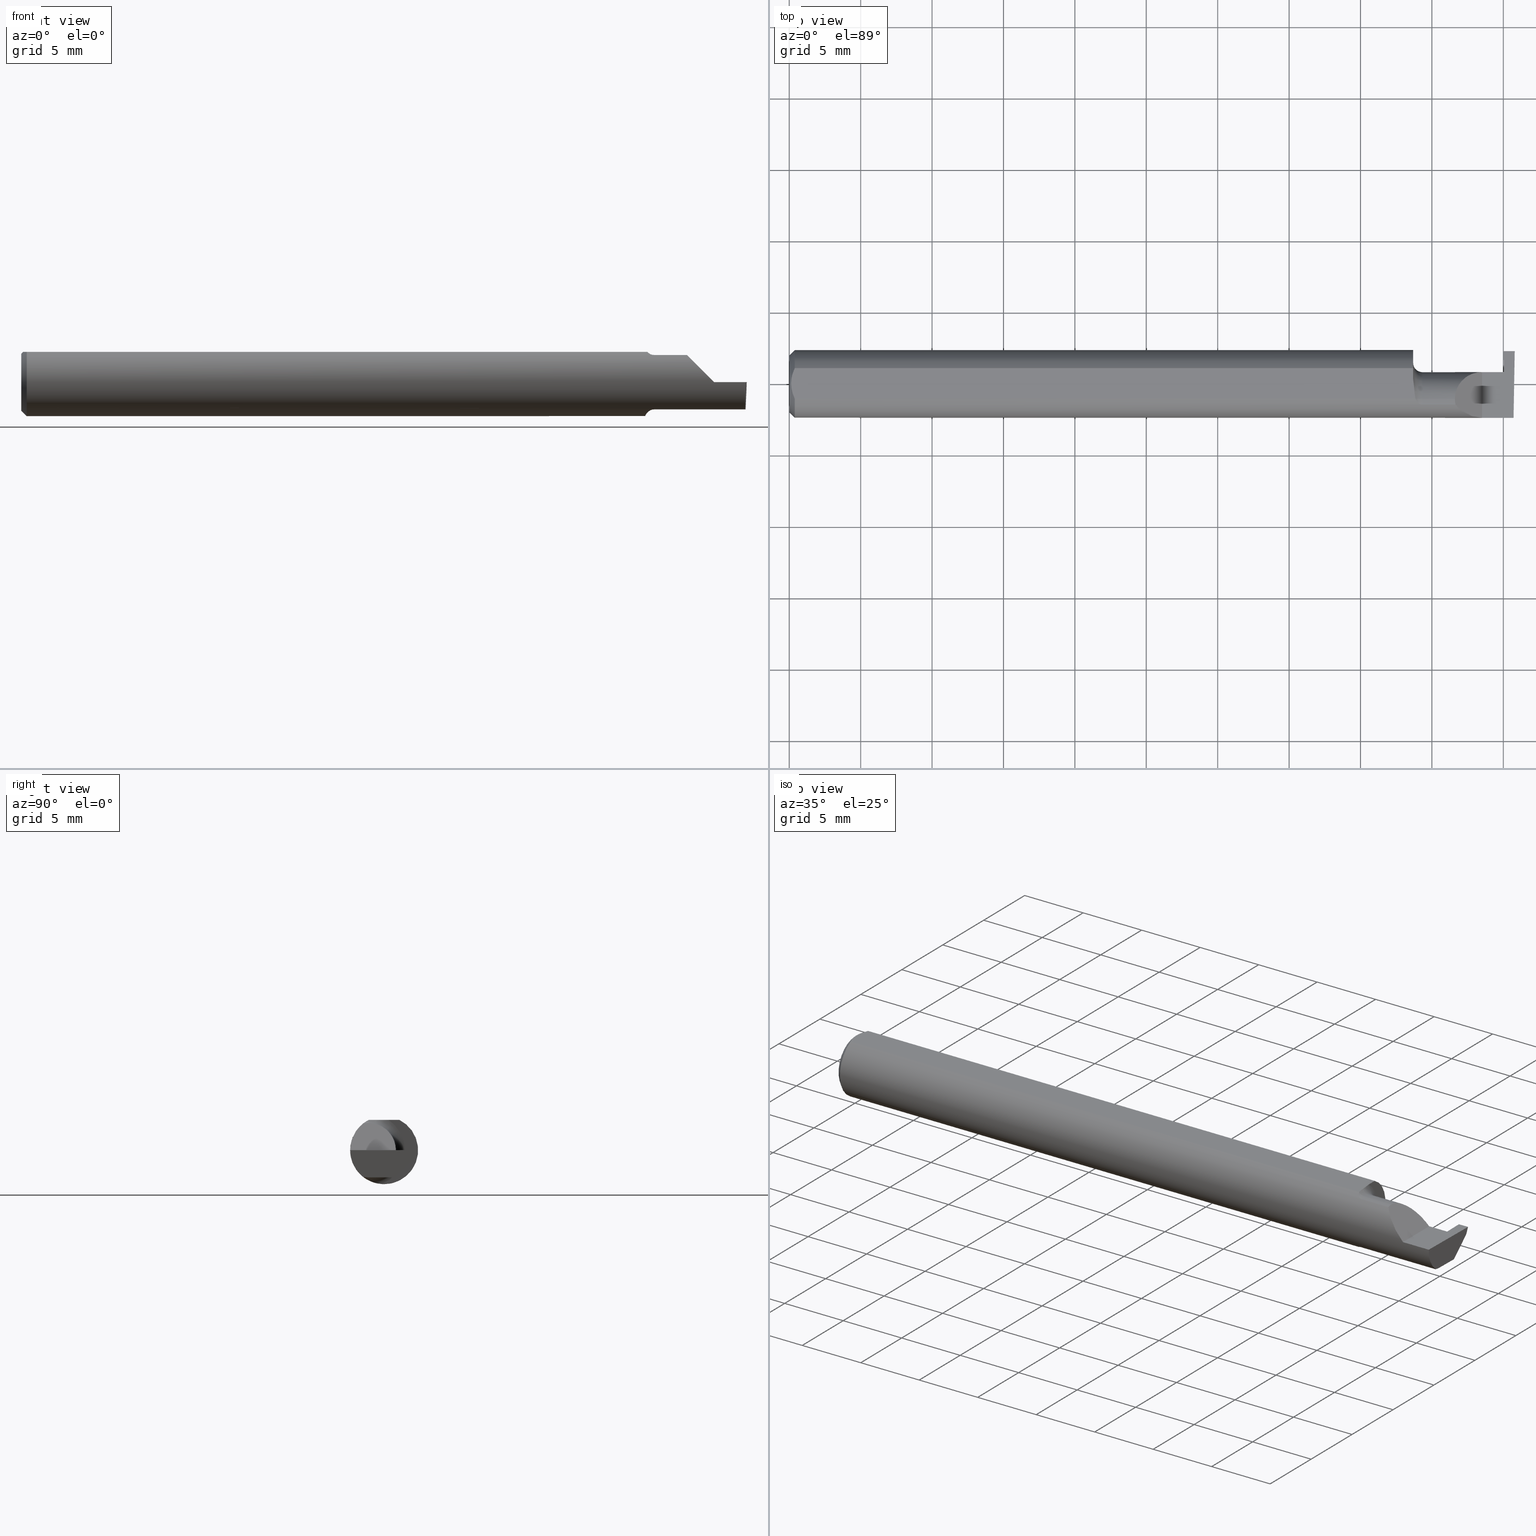
[diagram: canonical four-view strip — front | top / right | iso, engineering-drawing reading convention]
A machine part, canonical four-view strip (front | top / right | iso — engineering-drawing reading convention). The complete STEP part file that produces these views, byte-faithful:
ISO-10303-21;
HEADER;
FILE_DESCRIPTION (( 'STEP AP203' ),
    '1' );
FILE_NAME ('220668-GT030K-4.STEP',
    '2024-07-12T17:37:01',
    ( '' ),
    ( '' ),
    'SwSTEP 2.0',
    'SolidWorks 2024',
    '' );
FILE_SCHEMA (( 'CONFIG_CONTROL_DESIGN' ));
ENDSEC;

DATA;
#1 = ORIENTED_EDGE ( 'NONE', *, *, #62, .T. ) ;
#2 = EDGE_CURVE ( 'NONE', #588, #427, #677, .T. ) ;
#3 = DIRECTION ( 'NONE',  ( -7.219510806010324627E-16, 0.9999998142845092364, 0.0006094513490878469570 ) ) ;
#4 = CARTESIAN_POINT ( 'NONE',  ( 1.999906583493247680, 0.08935513411407894346, -0.002870745427926564477 ) ) ;
#5 =( BOUNDED_CURVE ( )  B_SPLINE_CURVE ( 3, ( #224, #756, #652, #766 ),
 .UNSPECIFIED., .F., .T. ) 
 B_SPLINE_CURVE_WITH_KNOTS ( ( 4, 4 ),
 ( 0.000000000000000000, 1.570796326794896558 ),
 .UNSPECIFIED. ) 
 CURVE ( )  GEOMETRIC_REPRESENTATION_ITEM ( )  RATIONAL_B_SPLINE_CURVE ( ( 1.000000000000000000, 0.8047378541243649375, 0.8047378541243649375, 1.000000000000000000 ) ) 
 REPRESENTATION_ITEM ( '' )  );
#6 = ORIENTED_EDGE ( 'NONE', *, *, #258, .F. ) ;
#7 = CALENDAR_DATE ( 2024, 12, 7 ) ;
#8 = CARTESIAN_POINT ( 'NONE',  ( 1.995486889784650053, -0.05810704225352111146, -0.07337936794867826185 ) ) ;
#9 = EDGE_CURVE ( 'NONE', #605, #407, #462, .T. ) ;
#10 = ORIENTED_EDGE ( 'NONE', *, *, #398, .T. ) ;
#11 = ORGANIZATION ( 'UNSPECIFIED', 'UNSPECIFIED', '' ) ;
#12 = FACE_OUTER_BOUND ( 'NONE', #253, .T. ) ;
#13 = AXIS2_PLACEMENT_3D ( 'NONE', #67, #496, #323 ) ;
#14 = CYLINDRICAL_SURFACE ( 'NONE', #696, 0.09359999999999998876 ) ;
#15 = EDGE_CURVE ( 'NONE', #427, #588, #636, .T. ) ;
#16 = VERTEX_POINT ( 'NONE', #27 ) ;
#17 = ADVANCED_FACE ( 'NONE', ( #263 ), #505, .T. ) ;
#18 = LINE ( 'NONE', #444, #465 ) ;
#19 = VECTOR ( 'NONE', #457, 39.37007874015748143 ) ;
#20 = ORIENTED_EDGE ( 'NONE', *, *, #317, .F. ) ;
#21 = CARTESIAN_POINT ( 'NONE',  ( 1.744999999999999885, -0.04259999999999998510, 0.000000000000000000 ) ) ;
#22 = CARTESIAN_POINT ( 'NONE',  ( 1.730259025420519237, -0.04992838138009422083, 0.07925011723318650669 ) ) ;
#23 = ORIENTED_EDGE ( 'NONE', *, *, #38, .T. ) ;
#24 = LINE ( 'NONE', #381, #73 ) ;
#25 = DIRECTION ( 'NONE',  ( -0.03489418134011375294, -0.0006090802009084601322, 0.9993908270190957621 ) ) ;
#26 = AXIS2_PLACEMENT_3D ( 'NONE', #197, #189, #691 ) ;
#27 = CARTESIAN_POINT ( 'NONE',  ( 1.970284083932823727, 0.02994487577554157814, -0.01903262984222200277 ) ) ;
#28 = EDGE_CURVE ( 'NONE', #283, #736, #159, .T. ) ;
#29 = CARTESIAN_POINT ( 'NONE',  ( 1.973215639910378627, 0.03244570701694828724, -0.07499697642507775763 ) ) ;
#30 = AXIS2_PLACEMENT_3D ( 'NONE', #386, #629, #148 ) ;
#31 = CIRCLE ( 'NONE', #775, 0.09359999999999998876 ) ;
#32 = DATE_AND_TIME ( #100, #249 ) ;
#33 = CARTESIAN_POINT ( 'NONE',  ( 0.01499999999999999944, -0.04209513035969836975, 0.08359999999999999376 ) ) ;
#34 = FACE_OUTER_BOUND ( 'NONE', #613, .T. ) ;
#35 = ORIENTED_EDGE ( 'NONE', *, *, #353, .T. ) ;
#36 = CARTESIAN_POINT ( 'NONE',  ( 1.722415450430337946, -0.03151229630690470518, -0.08835846806355296401 ) ) ;
#37 = CARTESIAN_POINT ( 'NONE',  ( 1.972956086143512255, 0.03244268712522563325, -0.07004187842367258499 ) ) ;
#38 = EDGE_CURVE ( 'NONE', #464, #596, #106, .T. ) ;
#39 = EDGE_CURVE ( 'NONE', #120, #640, #647, .T. ) ;
#40 = FACE_OUTER_BOUND ( 'NONE', #480, .T. ) ;
#41 = LINE ( 'NONE', #208, #228 ) ;
#42 = LINE ( 'NONE', #83, #469 ) ;
#43 = DIRECTION ( 'NONE',  ( 0.04124161337655601195, 0.000000000000000000, -0.9991492027350562521 ) ) ;
#44 = ORIENTED_EDGE ( 'NONE', *, *, #475, .F. ) ;
#45 = DIRECTION ( 'NONE',  ( 0.000000000000000000, -0.7071067811865487940, -0.7071067811865462405 ) ) ;
#46 =( GEOMETRIC_REPRESENTATION_CONTEXT ( 3 ) GLOBAL_UNCERTAINTY_ASSIGNED_CONTEXT ( ( #577 ) ) GLOBAL_UNIT_ASSIGNED_CONTEXT ( ( #550, #315, #423 ) ) REPRESENTATION_CONTEXT ( 'NONE', 'WORKASPACE' ) );
#47 = CARTESIAN_POINT ( 'NONE',  ( 1.836620632051322310, -0.05810704225352111840, 0.07337936794867826185 ) ) ;
#48 = ORIENTED_EDGE ( 'NONE', *, *, #711, .T. ) ;
#49 = CARTESIAN_POINT ( 'NONE',  ( 1.969395642961975890, 0.09132040434161205200, 0.002528790145347101052 ) ) ;
#50 = DIRECTION ( 'NONE',  ( 0.03490478697967554916, 0.000000000000000000, -0.9993906422645267851 ) ) ;
#51 = ORIENTED_EDGE ( 'NONE', *, *, #353, .F. ) ;
#52 = CARTESIAN_POINT ( 'NONE',  ( 1.899999999999999911, 0.08348456554894213844, -0.01900000000000000300 ) ) ;
#53 = ADVANCED_BREP_SHAPE_REPRESENTATION ( '220668-GT030K-4', ( #63, #389 ), #46 ) ;
#54 = DIRECTION ( 'NONE',  ( -1.000000000000000000, -0.000000000000000000, -0.000000000000000000 ) ) ;
#55 = ORIENTED_EDGE ( 'NONE', *, *, #38, .F. ) ;
#56 = CARTESIAN_POINT ( 'NONE',  ( 0.01499999999999999598, 0.04209513035969836975, 0.08359999999999999376 ) ) ;
#57 = CARTESIAN_POINT ( 'NONE',  ( 1.910000000000000142, -0.1000000000000000056, 1.102182119232621301E-17 ) ) ;
#58 = ORIENTED_EDGE ( 'NONE', *, *, #39, .T. ) ;
#59 = LINE ( 'NONE', #544, #620 ) ;
#60 = CARTESIAN_POINT ( 'NONE',  ( 1.999381723781206155, 0.08348456554894213844, -0.01899999999999999953 ) ) ;
#61 = ORIENTED_EDGE ( 'NONE', *, *, #107, .T. ) ;
#62 = EDGE_CURVE ( 'NONE', #414, #318, #568, .T. ) ;
#63 = MANIFOLD_SOLID_BREP ( 'Front Angle', #192 ) ;
#64 = LINE ( 'NONE', #71, #223 ) ;
#65 = ORIENTED_EDGE ( 'NONE', *, *, #514, .T. ) ;
#66 = APPROVAL_ROLE ( '' ) ;
#67 = CARTESIAN_POINT ( 'NONE',  ( 0.01499999999999999944, 0.000000000000000000, 0.000000000000000000 ) ) ;
#68 = EDGE_CURVE ( 'NONE', #596, #543, #607, .T. ) ;
#69 = ORIENTED_EDGE ( 'NONE', *, *, #574, .T. ) ;
#70 = LENGTH_MEASURE_WITH_UNIT ( LENGTH_MEASURE( 0.02539999999999999897 ), #555 );
#71 = CARTESIAN_POINT ( 'NONE',  ( 0.000000000000000000, -0.04209513035969836975, 0.08359999999999999376 ) ) ;
#72 = ORIENTED_EDGE ( 'NONE', *, *, #93, .T. ) ;
#73 = VECTOR ( 'NONE', #373, 39.37007874015748854 ) ;
#74 = CC_DESIGN_PERSON_AND_ORGANIZATION_ASSIGNMENT ( #378, #129, ( #509 ) ) ;
#75 = LINE ( 'NONE', #734, #426 ) ;
#76 = VERTEX_POINT ( 'NONE', #633 ) ;
#77 = PLANE ( 'NONE',  #415 ) ;
#78 = DIRECTION ( 'NONE',  ( 0.000000000000000000, 0.000000000000000000, 1.000000000000000000 ) ) ;
#79 = EDGE_CURVE ( 'NONE', #640, #665, #150, .T. ) ;
#80 = ORIENTED_EDGE ( 'NONE', *, *, #453, .F. ) ;
#81 = CC_DESIGN_SECURITY_CLASSIFICATION ( #693, ( #424 ) ) ;
#82 = CALENDAR_DATE ( 2024, 12, 7 ) ;
#83 = CARTESIAN_POINT ( 'NONE',  ( 1.719999999999999973, -0.04259999999999998510, 0.07499999999999999722 ) ) ;
#84 = CIRCLE ( 'NONE', #528, 0.09359999999999998876 ) ;
#85 = VERTEX_POINT ( 'NONE', #37 ) ;
#86 = PERSON_AND_ORGANIZATION_ROLE ( 'creator' ) ;
#87 = CARTESIAN_POINT ( 'NONE',  ( 1.719999999999999751, 0.000000000000000000, 0.000000000000000000 ) ) ;
#88 = AXIS2_PLACEMENT_3D ( 'NONE', #281, #105, #114 ) ;
#89 = CYLINDRICAL_SURFACE ( 'NONE', #393, 0.07499999999999999722 ) ;
#90 = AXIS2_PLACEMENT_3D ( 'NONE', #201, #563, #384 ) ;
#91 = ORIENTED_EDGE ( 'NONE', *, *, #751, .F. ) ;
#92 = VECTOR ( 'NONE', #237, 39.37007874015748143 ) ;
#93 = EDGE_CURVE ( 'NONE', #526, #225, #701, .T. ) ;
#94 = DIRECTION ( 'NONE',  ( 0.000000000000000000, 0.000000000000000000, -1.000000000000000000 ) ) ;
#95 = EDGE_CURVE ( 'NONE', #543, #665, #5, .T. ) ;
#96 = ORIENTED_EDGE ( 'NONE', *, *, #107, .F. ) ;
#97 = APPROVAL_DATE_TIME ( #267, #522 ) ;
#98 = DIRECTION ( 'NONE',  ( -1.000000000000000000, -0.000000000000000000, -0.000000000000000000 ) ) ;
#99 = ORIENTED_EDGE ( 'NONE', *, *, #667, .F. ) ;
#100 = CALENDAR_DATE ( 2024, 12, 7 ) ;
#101 = CC_DESIGN_DATE_AND_TIME_ASSIGNMENT ( #247, #443, ( #723 ) ) ;
#102 = DIRECTION ( 'NONE',  ( 0.9986309243930276969, -3.188005489065174990E-05, 0.05230942390802295616 ) ) ;
#103 = DIRECTION ( 'NONE',  ( -1.000000000000000000, -0.000000000000000000, -0.000000000000000000 ) ) ;
#104 = ORIENTED_EDGE ( 'NONE', *, *, #486, .T. ) ;
#105 = DIRECTION ( 'NONE',  ( 0.000000000000000000, -0.9396926207859080948, 0.3420201433256697121 ) ) ;
#106 = LINE ( 'NONE', #348, #156 ) ;
#107 = EDGE_CURVE ( 'NONE', #16, #498, #408, .T. ) ;
#108 = VERTEX_POINT ( 'NONE', #162 ) ;
#109 = CIRCLE ( 'NONE', #206, 0.07499999999999999722 ) ;
#110 = CARTESIAN_POINT ( 'NONE',  ( 0.009539353699420717939, -0.02875682547511373283, 0.08359999999999997988 ) ) ;
#111 = LOCAL_TIME ( 10, 37, 1.000000000000000000, #326 ) ;
#112 = LINE ( 'NONE', #232, #266 ) ;
#113 = EDGE_LOOP ( 'NONE', ( #72, #549, #48, #338 ) ) ;
#114 = DIRECTION ( 'NONE',  ( 0.000000000000000000, -0.3420201433256696566, -0.9396926207859079838 ) ) ;
#115 = CARTESIAN_POINT ( 'NONE',  ( 1.910000000000000142, -0.09359999999999998876, 1.102182119232621301E-17 ) ) ;
#116 = ORIENTED_EDGE ( 'NONE', *, *, #683, .T. ) ;
#117 = CARTESIAN_POINT ( 'NONE',  ( 1.969499999999999806, -0.04259999999999998510, 0.000000000000000000 ) ) ;
#118 = DIRECTION ( 'NONE',  ( -0.03084274406794415904, -0.7067703747110382073, -0.7067703747110356538 ) ) ;
#119 = EDGE_CURVE ( 'NONE', #120, #458, #401, .T. ) ;
#120 = VERTEX_POINT ( 'NONE', #274 ) ;
#121 = CARTESIAN_POINT ( 'NONE',  ( 2.000000000000000000, -0.09360000000000003040, 0.08359999999999999376 ) ) ;
#122 = CARTESIAN_POINT ( 'NONE',  ( 2.000000000000000000, 0.05599964285600403380, -0.07500000000000002498 ) ) ;
#123 = ORIENTED_EDGE ( 'NONE', *, *, #68, .F. ) ;
#124 = AXIS2_PLACEMENT_3D ( 'NONE', #262, #680, #131 ) ;
#125 = LINE ( 'NONE', #417, #714 ) ;
#126 = EDGE_LOOP ( 'NONE', ( #448, #705, #341, #116 ) ) ;
#127 = TOROIDAL_SURFACE ( 'NONE', #191, 0.09999999999999999167, 0.02500000000000007425 ) ;
#128 = VECTOR ( 'NONE', #215, 39.37007874015748143 ) ;
#129 = PERSON_AND_ORGANIZATION_ROLE ( 'design_owner' ) ;
#130 = TOROIDAL_SURFACE ( 'NONE', #535, 0.09999999999999999167, 0.02500000000000007425 ) ;
#131 = DIRECTION ( 'NONE',  ( 0.000000000000000000, 0.0006094513490878464149, -0.9999998142845092364 ) ) ;
#132 = CARTESIAN_POINT ( 'NONE',  ( 0.004999999999999977553, 0.007308422719211852582, 0.08359999999999999376 ) ) ;
#133 = CARTESIAN_POINT ( 'NONE',  ( 1.719999999999999751, 0.1323999999999999899, 0.000000000000000000 ) ) ;
#134 = CARTESIAN_POINT ( 'NONE',  ( 1.726356684838558531, -0.04259999999999997122, -0.08334386600104412568 ) ) ;
#135 = CARTESIAN_POINT ( 'NONE',  ( 0.01499999999999999598, 0.04209513035969836975, 0.08359999999999999376 ) ) ;
#136 = ADVANCED_FACE ( 'NONE', ( #332 ), #89, .T. ) ;
#137 = FACE_OUTER_BOUND ( 'NONE', #760, .T. ) ;
#138 = ORIENTED_EDGE ( 'NONE', *, *, #258, .T. ) ;
#139 = DIRECTION ( 'NONE',  ( -1.000000000000000000, -0.000000000000000000, -0.000000000000000000 ) ) ;
#140 = EDGE_CURVE ( 'NONE', #749, #186, #41, .T. ) ;
#141 = CARTESIAN_POINT ( 'NONE',  ( 0.01499999999999999944, 0.000000000000000000, 0.000000000000000000 ) ) ;
#142 = ORIENTED_EDGE ( 'NONE', *, *, #437, .F. ) ;
#143 =( BOUNDED_CURVE ( )  B_SPLINE_CURVE ( 3, ( #778, #474, #718, #298 ),
 .UNSPECIFIED., .F., .T. ) 
 B_SPLINE_CURVE_WITH_KNOTS ( ( 4, 4 ),
 ( 0.3794527164476053094, 0.5877155292608622350 ),
 .UNSPECIFIED. ) 
 CURVE ( )  GEOMETRIC_REPRESENTATION_ITEM ( )  RATIONAL_B_SPLINE_CURVE ( ( 1.000000000000000000, 0.9963888149483995926, 0.9963888149483995926, 1.000000000000000000 ) ) 
 REPRESENTATION_ITEM ( '' )  );
#144 = DIRECTION ( 'NONE',  ( 0.05230943362269508540, 0.0006086169641121965193, -0.9986307389317954364 ) ) ;
#145 = ORIENTED_EDGE ( 'NONE', *, *, #646, .F. ) ;
#146 = EDGE_CURVE ( 'NONE', #588, #407, #517, .T. ) ;
#147 = CC_DESIGN_APPROVAL ( #666, ( #424 ) ) ;
#148 = DIRECTION ( 'NONE',  ( 0.000000000000000000, 0.000000000000000000, 1.000000000000000000 ) ) ;
#149 = AXIS2_PLACEMENT_3D ( 'NONE', #265, #102, #400 ) ;
#150 = LINE ( 'NONE', #695, #329 ) ;
#151 = ORIENTED_EDGE ( 'NONE', *, *, #9, .T. ) ;
#152 = ADVANCED_FACE ( 'NONE', ( #521 ), #707, .F. ) ;
#153 = CARTESIAN_POINT ( 'NONE',  ( 1.719999999999999973, 0.03240000000000001906, 3.429011037612604807E-17 ) ) ;
#154 = ADVANCED_FACE ( 'NONE', ( #34 ), #169, .T. ) ;
#155 = DIRECTION ( 'NONE',  ( 0.000000000000000000, 0.000000000000000000, 1.000000000000000000 ) ) ;
#156 = VECTOR ( 'NONE', #463, 39.37007874015748143 ) ;
#157 = ORIENTED_EDGE ( 'NONE', *, *, #119, .T. ) ;
#158 = CARTESIAN_POINT ( 'NONE',  ( 1.835000000000000409, -0.04259999999999998510, 0.07499999999999999722 ) ) ;
#159 = LINE ( 'NONE', #405, #128 ) ;
#160 = ORIENTED_EDGE ( 'NONE', *, *, #737, .T. ) ;
#161 = CARTESIAN_POINT ( 'NONE',  ( 1.973213402547462803, -0.04260000000000001286, -0.07499999999999999722 ) ) ;
#162 = CARTESIAN_POINT ( 'NONE',  ( 1.744999999999999885, -0.05810704225352107677, -0.07337936794867828960 ) ) ;
#163 = ORIENTED_EDGE ( 'NONE', *, *, #79, .T. ) ;
#164 = CARTESIAN_POINT ( 'NONE',  ( 1.728086474849918508, -0.04638796853538176834, -0.08140770120152256151 ) ) ;
#165 = EDGE_CURVE ( 'NONE', #583, #526, #167, .T. ) ;
#166 = AXIS2_PLACEMENT_3D ( 'NONE', #394, #330, #694 ) ;
#167 = LINE ( 'NONE', #776, #435 ) ;
#168 = ORIENTED_EDGE ( 'NONE', *, *, #165, .F. ) ;
#169 = CONICAL_SURFACE ( 'NONE', #294, 0.09359999999999998876, 0.7853981633974473908 ) ;
#170 = CARTESIAN_POINT ( 'NONE',  ( 1.974734127201016820, 0.09049136203013627422, -0.1499086240528643699 ) ) ;
#171 = EDGE_LOOP ( 'NONE', ( #609, #157, #523, #160, #552, #635, #619 ) ) ;
#172 = PLANE ( 'NONE',  #634 ) ;
#173 = CARTESIAN_POINT ( 'NONE',  ( 1.996937940439960535, 0.02748456554894196727, -0.07499999999999998335 ) ) ;
#174 = ORIENTED_EDGE ( 'NONE', *, *, #178, .T. ) ;
#175 = EDGE_CURVE ( 'NONE', #526, #85, #125, .T. ) ;
#176 = CARTESIAN_POINT ( 'NONE',  ( 0.004999999999999986226, 1.025183015402604432E-17, 0.08359999999999999376 ) ) ;
#177 = VECTOR ( 'NONE', #782, 39.37007874015748143 ) ;
#178 = EDGE_CURVE ( 'NONE', #640, #596, #742, .T. ) ;
#179 = LINE ( 'NONE', #664, #193 ) ;
#180 = VERTEX_POINT ( 'NONE', #240 ) ;
#181 = CARTESIAN_POINT ( 'NONE',  ( 1.744999999999999885, -0.04259999999999997122, -0.07500000000000001110 ) ) ;
#182 = FACE_OUTER_BOUND ( 'NONE', #473, .T. ) ;
#183 = ORIENTED_EDGE ( 'NONE', *, *, #600, .T. ) ;
#184 = CARTESIAN_POINT ( 'NONE',  ( 1.969499999999999806, 0.03240000000000000518, 3.428996833357358890E-17 ) ) ;
#185 = DIRECTION ( 'NONE',  ( -0.01744642479411313493, -0.9998477995484629233, 3.463134274570152404E-16 ) ) ;
#186 = VERTEX_POINT ( 'NONE', #60 ) ;
#187 = APPLICATION_CONTEXT ( 'configuration controlled 3d designs of mechanical parts and assemblies' ) ;
#188 = VECTOR ( 'NONE', #507, 39.37007874015748143 ) ;
#189 = DIRECTION ( 'NONE',  ( -1.000000000000000000, -0.000000000000000000, -0.000000000000000000 ) ) ;
#190 = ORIENTED_EDGE ( 'NONE', *, *, #428, .T. ) ;
#191 = AXIS2_PLACEMENT_3D ( 'NONE', #336, #520, #273 ) ;
#192 = CLOSED_SHELL ( 'NONE', ( #17, #512, #334, #235, #154, #419, #627, #374, #291, #376, #673, #560, #727, #136, #279, #658, #587, #365, #216, #456, #152, #685 ) ) ;
#193 = VECTOR ( 'NONE', #118, 39.37007874015748854 ) ;
#194 = CARTESIAN_POINT ( 'NONE',  ( 1.995561922431087876, -0.08091355869144019330, -0.05531953381055035313 ) ) ;
#195 = ORIENTED_EDGE ( 'NONE', *, *, #387, .T. ) ;
#196 = PERSON_AND_ORGANIZATION ( #459, #11 ) ;
#197 = CARTESIAN_POINT ( 'NONE',  ( 1.744999999999999885, -0.04259999999999998510, 0.000000000000000000 ) ) ;
#198 = DIRECTION ( 'NONE',  ( 0.000000000000000000, 0.000000000000000000, 1.000000000000000000 ) ) ;
#199 = PERSON_AND_ORGANIZATION ( #459, #11 ) ;
#200 = CARTESIAN_POINT ( 'NONE',  ( 1.744999999999999885, -0.04259999999999997816, 0.000000000000000000 ) ) ;
#201 = CARTESIAN_POINT ( 'NONE',  ( 0.000000000000000000, 0.000000000000000000, 0.000000000000000000 ) ) ;
#202 = DIRECTION ( 'NONE',  ( -1.000000000000000000, -0.000000000000000000, -0.000000000000000000 ) ) ;
#203 = EDGE_CURVE ( 'NONE', #225, #781, #112, .T. ) ;
#204 = ORIENTED_EDGE ( 'NONE', *, *, #15, .F. ) ;
#205 = COORDINATED_UNIVERSAL_TIME_OFFSET ( 8, 0, .BEHIND. ) ;
#206 = AXIS2_PLACEMENT_3D ( 'NONE', #21, #436, #499 ) ;
#207 = CARTESIAN_POINT ( 'NONE',  ( 1.972080687037212954, 0.02094495418688668148, -0.05333678008583653957 ) ) ;
#208 = CARTESIAN_POINT ( 'NONE',  ( 1.899999999999999911, 0.08348456554894213844, -0.01900000000000000300 ) ) ;
#209 = EDGE_CURVE ( 'NONE', #458, #186, #669, .T. ) ;
#210 = LINE ( 'NONE', #339, #188 ) ;
#211 = DIRECTION ( 'NONE',  ( 0.000000000000000000, 0.000000000000000000, 1.000000000000000000 ) ) ;
#212 = ORIENTED_EDGE ( 'NONE', *, *, #246, .F. ) ;
#213 = PERSON_AND_ORGANIZATION_ROLE ( 'classification_officer' ) ;
#214 = CARTESIAN_POINT ( 'NONE',  ( 1.719999999999999751, -0.006757276995305157297, -0.09335576686851604356 ) ) ;
#215 = DIRECTION ( 'NONE',  ( -1.000000000000000000, -7.220223772318049548E-16, 1.224646799147358877E-16 ) ) ;
#216 = ADVANCED_FACE ( 'NONE', ( #715 ), #244, .F. ) ;
#217 = ORIENTED_EDGE ( 'NONE', *, *, #175, .T. ) ;
#218 = APPROVAL_DATE_TIME ( #32, #666 ) ;
#219 = DIRECTION ( 'NONE',  ( -0.03699114979479856125, 0.7066228325057372084, 0.7066228325057346549 ) ) ;
#220 = DIRECTION ( 'NONE',  ( 1.000000000000000000, 0.000000000000000000, 0.000000000000000000 ) ) ;
#221 = ORIENTED_EDGE ( 'NONE', *, *, #2, .F. ) ;
#222 = CYLINDRICAL_SURFACE ( 'NONE', #30, 0.07499999999999999722 ) ;
#223 = VECTOR ( 'NONE', #309, 39.37007874015748143 ) ;
#224 = CARTESIAN_POINT ( 'NONE',  ( 1.835000000000000409, -0.04259999999999998510, 0.07499999999999999722 ) ) ;
#225 = VERTEX_POINT ( 'NONE', #173 ) ;
#226 = DIRECTION ( 'NONE',  ( 0.04124162102273657565, 0.0006089328293544640823, -0.9991490168619624468 ) ) ;
#227 = CARTESIAN_POINT ( 'NONE',  ( 1.726129652885479260, -0.04209513035970094408, 0.08359999999999999376 ) ) ;
#228 = VECTOR ( 'NONE', #450, 39.37007874015748143 ) ;
#229 = VERTEX_POINT ( 'NONE', #482 ) ;
#230 = AXIS2_PLACEMENT_3D ( 'NONE', #57, #530, #770 ) ;
#231 = CARTESIAN_POINT ( 'NONE',  ( 1.736446782524424082, -0.05558685324519236498, -0.07531605361338915283 ) ) ;
#232 = CARTESIAN_POINT ( 'NONE',  ( 1.997436282896842163, 0.05604437736224970185, -0.07500000000000002498 ) ) ;
#233 = ORIENTED_EDGE ( 'NONE', *, *, #346, .F. ) ;
#234 = EDGE_CURVE ( 'NONE', #356, #605, #725, .T. ) ;
#235 = ADVANCED_FACE ( 'NONE', ( #182 ), #130, .F. ) ;
#236 = PLANE ( 'NONE',  #611 ) ;
#237 = DIRECTION ( 'NONE',  ( -1.000000000000000000, -0.000000000000000000, -0.000000000000000000 ) ) ;
#238 = EDGE_LOOP ( 'NONE', ( #10, #689, #345, #372, #151, #644 ) ) ;
#239 = FACE_OUTER_BOUND ( 'NONE', #362, .T. ) ;
#240 = CARTESIAN_POINT ( 'NONE',  ( 1.995486889784650053, -0.05810704225352111146, -0.07337936794867826185 ) ) ;
#241 = CC_DESIGN_PERSON_AND_ORGANIZATION_ASSIGNMENT ( #272, #213, ( #693 ) ) ;
#242 = EDGE_LOOP ( 'NONE', ( #80, #310, #91, #539, #518, #708, #183, #96 ) ) ;
#243 = DIRECTION ( 'NONE',  ( 0.000000000000000000, -0.7071067811865462405, 0.7071067811865487940 ) ) ;
#244 = PLANE ( 'NONE',  #369 ) ;
#245 = ORIENTED_EDGE ( 'NONE', *, *, #319, .T. ) ;
#246 = EDGE_CURVE ( 'NONE', #630, #414, #385, .T. ) ;
#247 = DATE_AND_TIME ( #7, #657 ) ;
#248 = CARTESIAN_POINT ( 'NONE',  ( 1.996026586675631709, -0.09358669535931166128, -0.02913391928411207185 ) ) ;
#249 = LOCAL_TIME ( 10, 37, 1.000000000000000000, #205 ) ;
#250 = EDGE_LOOP ( 'NONE', ( #411, #722, #536, #217, #69 ) ) ;
#251 = VECTOR ( 'NONE', #25, 39.37007874015748143 ) ;
#252 = CARTESIAN_POINT ( 'NONE',  ( 1.734746577633804243, -0.05429945193459817521, 0.07626038032150797563 ) ) ;
#253 = EDGE_LOOP ( 'NONE', ( #104, #656, #1 ) ) ;
#254 = AXIS2_PLACEMENT_3D ( 'NONE', #578, #103, #211 ) ;
#255 = DIRECTION ( 'NONE',  ( 0.000000000000000000, 0.000000000000000000, -1.000000000000000000 ) ) ;
#256 = CARTESIAN_POINT ( 'NONE',  ( 1.975744671832483812, 0.03249136206948449734, -0.1499086886162006582 ) ) ;
#257 = ORIENTED_EDGE ( 'NONE', *, *, #739, .F. ) ;
#258 = EDGE_CURVE ( 'NONE', #422, #546, #31, .T. ) ;
#259 = DATE_AND_TIME ( #558, #628 ) ;
#260 = CARTESIAN_POINT ( 'NONE',  ( 1.744999999999999885, -0.05810704225352114616, 0.07337936794867826185 ) ) ;
#261 = EDGE_LOOP ( 'NONE', ( #566, #324, #195, #328 ) ) ;
#262 = CARTESIAN_POINT ( 'NONE',  ( 1.975744671832483812, 0.03249136206948449734, -0.1499086886162006582 ) ) ;
#263 = FACE_OUTER_BOUND ( 'NONE', #242, .T. ) ;
#264 = CALENDAR_DATE ( 2024, 12, 7 ) ;
#265 = CARTESIAN_POINT ( 'NONE',  ( 1.973215639910379959, -1.938747615474559760, -0.07619832307789185799 ) ) ;
#266 = VECTOR ( 'NONE', #185, 39.37007874015748143 ) ;
#267 = DATE_AND_TIME ( #264, #592 ) ;
#268 = CARTESIAN_POINT ( 'NONE',  ( 1.973213402547462803, -0.04260000000000001286, -0.07499999999999999722 ) ) ;
#269 = CARTESIAN_POINT ( 'NONE',  ( 2.000000000000000000, 0.02748456554894193257, -0.07500000000000001110 ) ) ;
#270 = PRODUCT_DEFINITION_SHAPE ( 'NONE', 'NONE',  #723 ) ;
#271 = ORIENTED_EDGE ( 'NONE', *, *, #739, .T. ) ;
#272 = PERSON_AND_ORGANIZATION ( #459, #11 ) ;
#273 = DIRECTION ( 'NONE',  ( 0.000000000000000000, 0.000000000000000000, 1.000000000000000000 ) ) ;
#274 = CARTESIAN_POINT ( 'NONE',  ( 1.996789369178486373, -0.09359999999634724399, 1.965990811775635199E-19 ) ) ;
#275 = EDGE_LOOP ( 'NONE', ( #418, #468, #271 ) ) ;
#276 = CIRCLE ( 'NONE', #553, 0.07499999999999999722 ) ;
#277 = DIRECTION ( 'NONE',  ( 0.000000000000000000, 0.000000000000000000, -1.000000000000000000 ) ) ;
#278 = DIRECTION ( 'NONE',  ( 0.7071067811865481278, 8.659560562354925463E-17, 0.7071067811865469066 ) ) ;
#279 = ADVANCED_FACE ( 'NONE', ( #590 ), #538, .F. ) ;
#280 = EDGE_LOOP ( 'NONE', ( #61, #402, #432 ) ) ;
#281 = CARTESIAN_POINT ( 'NONE',  ( 1.899999999999999911, 0.09040000000000000813, -3.918869757271545852E-19 ) ) ;
#282 = DIRECTION ( 'NONE',  ( 0.000000000000000000, 0.000000000000000000, 1.000000000000000000 ) ) ;
#283 = VERTEX_POINT ( 'NONE', #364 ) ;
#284 = APPROVAL_PERSON_ORGANIZATION ( #731, #666, #66 ) ;
#285 = CARTESIAN_POINT ( 'NONE',  ( 0.000000000000000000, 1.054420894065871180E-17, 0.07860000000000001708 ) ) ;
#286 = EDGE_CURVE ( 'NONE', #630, #76, #554, .T. ) ;
#287 = CARTESIAN_POINT ( 'NONE',  ( 1.726356684838558531, -0.04259999999999997816, 0.08334386600104415344 ) ) ;
#288 = EDGE_LOOP ( 'NONE', ( #292, #495, #712, #729, #168 ) ) ;
#289 = DIRECTION ( 'NONE',  ( 0.02618093032612054880, 0.000000000000000000, 0.9996572206948033390 ) ) ;
#290 = CARTESIAN_POINT ( 'NONE',  ( 1.721463898467976428, -0.005727447913487648465, 0.08359999999999997988 ) ) ;
#291 = ADVANCED_FACE ( 'NONE', ( #355 ), #672, .F. ) ;
#292 = ORIENTED_EDGE ( 'NONE', *, *, #453, .T. ) ;
#293 = EDGE_CURVE ( 'NONE', #186, #225, #179, .T. ) ;
#294 = AXIS2_PLACEMENT_3D ( 'NONE', #511, #710, #94 ) ;
#295 = CARTESIAN_POINT ( 'NONE',  ( 0.01206089165507020187, -0.03555991978469316694, 0.08359999999999999376 ) ) ;
#296 = CARTESIAN_POINT ( 'NONE',  ( 1.719999999999999751, 0.01227294415283364248, 0.08359999999999999376 ) ) ;
#297 = ORIENTED_EDGE ( 'NONE', *, *, #475, .T. ) ;
#298 = CARTESIAN_POINT ( 'NONE',  ( 1.995715029210241243, -0.04259999999999997816, -0.07499999999999998335 ) ) ;
#299 = DESIGN_CONTEXT ( 'detailed design', #349, 'design' ) ;
#300 = LINE ( 'NONE', #542, #637 ) ;
#301 = ORIENTED_EDGE ( 'NONE', *, *, #68, .T. ) ;
#302 = CARTESIAN_POINT ( 'NONE',  ( 1.970284083932823727, 0.03241159854787072775, -0.01903112649442138815 ) ) ;
#303 = CARTESIAN_POINT ( 'NONE',  ( 0.000000000000000000, 0.04209513035969836975, 0.08359999999999999376 ) ) ;
#304 = VECTOR ( 'NONE', #226, 39.37007874015748143 ) ;
#305 = ORIENTED_EDGE ( 'NONE', *, *, #600, .F. ) ;
#306 = EDGE_CURVE ( 'NONE', #427, #422, #300, .T. ) ;
#307 = TOROIDAL_SURFACE ( 'NONE', #750, 0.09999999999999999167, 0.02500000000000007425 ) ;
#308 = APPLICATION_PROTOCOL_DEFINITION ( 'international standard', 'config_control_design', 1994, #349 ) ;
#309 = DIRECTION ( 'NONE',  ( 1.000000000000000000, 0.000000000000000000, 0.000000000000000000 ) ) ;
#310 = ORIENTED_EDGE ( 'NONE', *, *, #317, .T. ) ;
#311 = B_SPLINE_CURVE_WITH_KNOTS ( 'NONE', 3,
 ( #357, #713, #606, #231, #470, #589, #164, #769 ),
 .UNSPECIFIED., .F., .F.,
 ( 4, 2, 2, 4 ),
 ( 1.968126669309311202E-07, 0.0001761966947278539039, 0.0003521965767887768836, 0.0007041963409106363411 ),
 .UNSPECIFIED. ) ;
#312 = MECHANICAL_CONTEXT ( 'NONE', #187, 'mechanical' ) ;
#313 = LINE ( 'NONE', #256, #251 ) ;
#314 = ORIENTED_EDGE ( 'NONE', *, *, #398, .F. ) ;
#315 =( NAMED_UNIT ( * ) PLANE_ANGLE_UNIT ( ) SI_UNIT ( $, .RADIAN. ) );
#316 = CARTESIAN_POINT ( 'NONE',  ( 1.736469028275930526, -0.05559939362423894915, 0.07530665289274067475 ) ) ;
#317 = EDGE_CURVE ( 'NONE', #583, #617, #728, .T. ) ;
#318 = VERTEX_POINT ( 'NONE', #562 ) ;
#319 = EDGE_CURVE ( 'NONE', #605, #422, #331, .T. ) ;
#320 = COORDINATED_UNIVERSAL_TIME_OFFSET ( 8, 0, .BEHIND. ) ;
#321 = CARTESIAN_POINT ( 'NONE',  ( 1.996788249052547259, -0.09359999022555408332, -4.277588313355801215E-05 ) ) ;
#322 = EDGE_LOOP ( 'NONE', ( #368, #360, #305, #767, #692 ) ) ;
#323 = DIRECTION ( 'NONE',  ( 0.000000000000000000, 0.000000000000000000, -1.000000000000000000 ) ) ;
#324 = ORIENTED_EDGE ( 'NONE', *, *, #574, .F. ) ;
#325 = CIRCLE ( 'NONE', #768, 0.02500000000000007425 ) ;
#326 = COORDINATED_UNIVERSAL_TIME_OFFSET ( 8, 0, .BEHIND. ) ;
#327 = CARTESIAN_POINT ( 'NONE',  ( 1.973215639910378627, 0.02748456554894267156, -0.07499999999999973355 ) ) ;
#328 = ORIENTED_EDGE ( 'NONE', *, *, #737, .F. ) ;
#329 = VECTOR ( 'NONE', #762, 39.37007874015748143 ) ;
#330 = DIRECTION ( 'NONE',  ( 0.000000000000000000, -1.000000000000000000, 0.000000000000000000 ) ) ;
#331 = CIRCLE ( 'NONE', #651, 0.09359999999999998876 ) ;
#332 = FACE_OUTER_BOUND ( 'NONE', #698, .T. ) ;
#333 = ORIENTED_EDGE ( 'NONE', *, *, #234, .F. ) ;
#334 = ADVANCED_FACE ( 'NONE', ( #447 ), #307, .F. ) ;
#335 = SHAPE_DEFINITION_REPRESENTATION ( #270, #53 ) ;
#336 = CARTESIAN_POINT ( 'NONE',  ( 1.744999999999999885, -0.04259999999999997816, 0.000000000000000000 ) ) ;
#337 = CARTESIAN_POINT ( 'NONE',  ( 1.970027797685394821, 0.03157410243558823187, -0.01282266061343017780 ) ) ;
#338 = ORIENTED_EDGE ( 'NONE', *, *, #165, .T. ) ;
#339 = CARTESIAN_POINT ( 'NONE',  ( 1.719999999999999751, -0.09360000000000003040, 0.08359999999999999376 ) ) ;
#340 = CARTESIAN_POINT ( 'NONE',  ( 1.836620632051322310, -0.05810704225352111840, 0.07337936794867826185 ) ) ;
#341 = ORIENTED_EDGE ( 'NONE', *, *, #140, .F. ) ;
#342 = PERSON_AND_ORGANIZATION ( #459, #11 ) ;
#343 = PLANE ( 'NONE',  #88 ) ;
#344 = DIRECTION ( 'NONE',  ( 0.01744642479411314534, 0.9998477995484629233, -2.135106780035503491E-18 ) ) ;
#345 = ORIENTED_EDGE ( 'NONE', *, *, #446, .T. ) ;
#346 = EDGE_CURVE ( 'NONE', #617, #108, #732, .T. ) ;
#347 = DIRECTION ( 'NONE',  ( 1.000000000000000000, 0.000000000000000000, -0.000000000000000000 ) ) ;
#348 = CARTESIAN_POINT ( 'NONE',  ( 1.857250000000000068, -0.05810704225352111146, 0.07337936794867826185 ) ) ;
#349 = APPLICATION_CONTEXT ( 'configuration controlled 3d designs of mechanical parts and assemblies' ) ;
#350 = ORIENTED_EDGE ( 'NONE', *, *, #9, .F. ) ;
#351 = CC_DESIGN_APPROVAL ( #522, ( #693 ) ) ;
#352 = CARTESIAN_POINT ( 'NONE',  ( 0.000000000000000000, 0.000000000000000000, 0.000000000000000000 ) ) ;
#353 = EDGE_CURVE ( 'NONE', #180, #108, #18, .T. ) ;
#354 = VECTOR ( 'NONE', #755, 39.37007874015748143 ) ;
#355 = FACE_OUTER_BOUND ( 'NONE', #702, .T. ) ;
#356 = VERTEX_POINT ( 'NONE', #744 ) ;
#357 = CARTESIAN_POINT ( 'NONE',  ( 1.744999999999999885, -0.05810704225352107677, -0.07337936794867828960 ) ) ;
#358 = DIRECTION ( 'NONE',  ( 0.000000000000000000, 0.000000000000000000, 1.000000000000000000 ) ) ;
#359 = AXIS2_PLACEMENT_3D ( 'NONE', #442, #678, #198 ) ;
#360 = ORIENTED_EDGE ( 'NONE', *, *, #660, .F. ) ;
#361 = CARTESIAN_POINT ( 'NONE',  ( 1.836620632051322310, -0.05810704225352111840, 0.07337936794867826185 ) ) ;
#362 = EDGE_LOOP ( 'NONE', ( #670, #674 ) ) ;
#363 = DIRECTION ( 'NONE',  ( 0.000000000000000000, 0.000000000000000000, -1.000000000000000000 ) ) ;
#364 = CARTESIAN_POINT ( 'NONE',  ( 1.970510542377208685, 0.03240000000000000518, 1.805708494317155471E-18 ) ) ;
#365 = ADVANCED_FACE ( 'NONE', ( #383 ), #371, .F. ) ;
#366 = ORIENTED_EDGE ( 'NONE', *, *, #486, .F. ) ;
#367 = PLANE ( 'NONE',  #564 ) ;
#368 = ORIENTED_EDGE ( 'NONE', *, *, #502, .F. ) ;
#369 = AXIS2_PLACEMENT_3D ( 'NONE', #170, #780, #50 ) ;
#370 = APPROVAL_STATUS ( 'not_yet_approved' ) ;
#371 = PLANE ( 'NONE',  #124 ) ;
#372 = ORIENTED_EDGE ( 'NONE', *, *, #234, .T. ) ;
#373 = DIRECTION ( 'NONE',  ( 0.01742050049977865445, -0.9998482515673751125, -2.130797594925077101E-18 ) ) ;
#374 = ADVANCED_FACE ( 'NONE', ( #559 ), #367, .F. ) ;
#375 = FACE_OUTER_BOUND ( 'NONE', #601, .T. ) ;
#376 = ADVANCED_FACE ( 'NONE', ( #375 ), #593, .T. ) ;
#377 = CARTESIAN_POINT ( 'NONE',  ( 0.005981829149300633627, 0.01454044632356571096, 0.08359999999999997988 ) ) ;
#378 = PERSON_AND_ORGANIZATION ( #459, #11 ) ;
#379 = DIRECTION ( 'NONE',  ( -1.000000000000000000, -0.000000000000000000, -0.000000000000000000 ) ) ;
#380 = ORIENTED_EDGE ( 'NONE', *, *, #646, .T. ) ;
#381 = CARTESIAN_POINT ( 'NONE',  ( 1.972825615918400111, -0.1004734632187760518, 3.327902248433222755E-18 ) ) ;
#382 = PRODUCT_RELATED_PRODUCT_CATEGORY ( 'detail', '', ( #509 ) ) ;
#383 = FACE_OUTER_BOUND ( 'NONE', #322, .T. ) ;
#384 = DIRECTION ( 'NONE',  ( 0.000000000000000000, 0.000000000000000000, 1.000000000000000000 ) ) ;
#385 = B_SPLINE_CURVE_WITH_KNOTS ( 'NONE', 3,
 ( #227, #410, #655, #290, #608, #296 ),
 .UNSPECIFIED., .F., .F.,
 ( 4, 2, 4 ),
 ( 0.009672910729349781800, 0.01035804079918456987, 0.01104317086901935793 ),
 .UNSPECIFIED. ) ;
#386 = CARTESIAN_POINT ( 'NONE',  ( 1.719999999999999973, -0.04259999999999998510, 0.000000000000000000 ) ) ;
#387 = EDGE_CURVE ( 'NONE', #85, #283, #313, .T. ) ;
#388 = CARTESIAN_POINT ( 'NONE',  ( 0.01203648650249646186, 0.03550565407121129141, 0.08359999999999997988 ) ) ;
#389 = AXIS2_PLACEMENT_3D ( 'NONE', #615, #610, #682 ) ;
#390 = CARTESIAN_POINT ( 'NONE',  ( 1.744999999999999885, -0.04259999999999997122, -0.09999999999999999167 ) ) ;
#391 = CARTESIAN_POINT ( 'NONE',  ( 1.996678706298551376, -0.09994204647866641866, 4.067411700507134861E-19 ) ) ;
#392 = DATE_AND_TIME ( #82, #111 ) ;
#393 = AXIS2_PLACEMENT_3D ( 'NONE', #525, #467, #282 ) ;
#394 = CARTESIAN_POINT ( 'NONE',  ( 1.744999999999999885, -0.04259999999999997816, 0.09999999999999999167 ) ) ;
#395 = CARTESIAN_POINT ( 'NONE',  ( 0.01499999999999999944, 1.146269404001922621E-17, 0.09359999999999998876 ) ) ;
#396 = VERTEX_POINT ( 'NONE', #134 ) ;
#397 = DIRECTION ( 'NONE',  ( -1.000000000000000000, -0.000000000000000000, -0.000000000000000000 ) ) ;
#398 = EDGE_CURVE ( 'NONE', #546, #630, #64, .T. ) ;
#399 = CARTESIAN_POINT ( 'NONE',  ( 1.835000000000000409, -0.04259999999999998510, 0.07499999999999999722 ) ) ;
#400 = DIRECTION ( 'NONE',  ( 0.05230942393460497747, 0.000000000000000000, -0.9986309249005007604 ) ) ;
#401 = LINE ( 'NONE', #391, #735 ) ;
#402 = ORIENTED_EDGE ( 'NONE', *, *, #660, .T. ) ;
#403 = VECTOR ( 'NONE', #541, 39.37007874015748854 ) ;
#404 = DIRECTION ( 'NONE',  ( 0.000000000000000000, -0.000000000000000000, 1.000000000000000000 ) ) ;
#405 = CARTESIAN_POINT ( 'NONE',  ( 2.000000000000000000, 0.03240000000000002600, 1.170710448583159060E-32 ) ) ;
#406 = AXIS2_PLACEMENT_3D ( 'NONE', #586, #639, #43 ) ;
#407 = VERTEX_POINT ( 'NONE', #551 ) ;
#408 =( BOUNDED_CURVE ( )  B_SPLINE_CURVE ( 3, ( #508, #337, #753, #582 ),
 .UNSPECIFIED., .F., .T. ) 
 B_SPLINE_CURVE_WITH_KNOTS ( ( 4, 4 ),
 ( 4.455205321888861647, 4.711308219781928486 ),
 .UNSPECIFIED. ) 
 CURVE ( )  GEOMETRIC_REPRESENTATION_ITEM ( )  RATIONAL_B_SPLINE_CURVE ( ( 1.000000000000000000, 0.9945417399294778082, 0.9945417399294778082, 1.000000000000000000 ) ) 
 REPRESENTATION_ITEM ( '' )  );
#409 = CARTESIAN_POINT ( 'NONE',  ( 1.910000000000000142, 0.03240000000000002600, 1.102182119232621301E-17 ) ) ;
#410 = CARTESIAN_POINT ( 'NONE',  ( 1.726082007218903369, -0.03301619840524110810, 0.08359999999999997988 ) ) ;
#411 = ORIENTED_EDGE ( 'NONE', *, *, #140, .T. ) ;
#412 = CARTESIAN_POINT ( 'NONE',  ( 0.01499999999999999944, -0.04209513035969836975, 0.08359999999999999376 ) ) ;
#413 = CARTESIAN_POINT ( 'NONE',  ( 1.744999999999999885, -0.04259999999999997816, 0.000000000000000000 ) ) ;
#414 = VERTEX_POINT ( 'NONE', #494 ) ;
#415 = AXIS2_PLACEMENT_3D ( 'NONE', #133, #618, #255 ) ;
#416 = LINE ( 'NONE', #481, #177 ) ;
#417 = CARTESIAN_POINT ( 'NONE',  ( 1.970187911046528351, 0.08532170653269689764, -0.01716285901624526114 ) ) ;
#418 = ORIENTED_EDGE ( 'NONE', *, *, #527, .F. ) ;
#419 = ADVANCED_FACE ( 'NONE', ( #137 ), #14, .T. ) ;
#420 = CARTESIAN_POINT ( 'NONE',  ( 1.996788249052547259, -0.09359999022555408332, -4.277588313355801215E-05 ) ) ;
#421 = DIRECTION ( 'NONE',  ( 3.192376091677893247E-05, 0.9999999994904366085, -3.463309235184766513E-16 ) ) ;
#422 = VERTEX_POINT ( 'NONE', #684 ) ;
#423 =( NAMED_UNIT ( * ) SI_UNIT ( $, .STERADIAN. ) SOLID_ANGLE_UNIT ( ) );
#424 = PRODUCT_DEFINITION_FORMATION_WITH_SPECIFIED_SOURCE ( 'ANY', '', #509, .NOT_KNOWN. ) ;
#425 = DIRECTION ( 'NONE',  ( -0.03056411404777943305, -0.3418603543644915810, -0.9392536042231929283 ) ) ;
#426 = VECTOR ( 'NONE', #548, 39.37007874015748854 ) ;
#427 = VERTEX_POINT ( 'NONE', #622 ) ;
#428 = EDGE_CURVE ( 'NONE', #625, #120, #75, .T. ) ;
#429 = CARTESIAN_POINT ( 'NONE',  ( 1.744999999999999885, -0.04259999999999998510, 0.000000000000000000 ) ) ;
#430 = DIRECTION ( 'NONE',  ( -1.000000000000000000, -0.000000000000000000, -0.000000000000000000 ) ) ;
#431 = VECTOR ( 'NONE', #571, 39.37007874015748143 ) ;
#432 = ORIENTED_EDGE ( 'NONE', *, *, #717, .F. ) ;
#433 = VECTOR ( 'NONE', #220, 39.37007874015748143 ) ;
#434 = EDGE_CURVE ( 'NONE', #180, #625, #690, .T. ) ;
#435 = VECTOR ( 'NONE', #421, 39.37007874015748143 ) ;
#436 = DIRECTION ( 'NONE',  ( -1.000000000000000000, -0.000000000000000000, -0.000000000000000000 ) ) ;
#437 = EDGE_CURVE ( 'NONE', #76, #464, #471, .T. ) ;
#438 = CARTESIAN_POINT ( 'NONE',  ( 1.728098441794898354, -0.04641417426599063478, 0.08139430652501544738 ) ) ;
#439 = ORIENTED_EDGE ( 'NONE', *, *, #286, .T. ) ;
#440 = APPROVAL_STATUS ( 'not_yet_approved' ) ;
#441 = DIRECTION ( 'NONE',  ( 0.000000000000000000, 0.000000000000000000, 1.000000000000000000 ) ) ;
#442 = CARTESIAN_POINT ( 'NONE',  ( 0.000000000000000000, 0.000000000000000000, 0.000000000000000000 ) ) ;
#443 = DATE_TIME_ROLE ( 'creation_date' ) ;
#444 = CARTESIAN_POINT ( 'NONE',  ( 1.857250000000000068, -0.05810704225352111146, -0.07337936794867826185 ) ) ;
#445 = ORIENTED_EDGE ( 'NONE', *, *, #527, .T. ) ;
#446 = EDGE_CURVE ( 'NONE', #414, #356, #210, .T. ) ;
#447 = FACE_OUTER_BOUND ( 'NONE', #579, .T. ) ;
#448 = ORIENTED_EDGE ( 'NONE', *, *, #540, .T. ) ;
#449 = CARTESIAN_POINT ( 'NONE',  ( 1.969499999999999806, 0.03239999167003589087, -3.534818988851000062E-05 ) ) ;
#450 = DIRECTION ( 'NONE',  ( 1.000000000000000000, -0.000000000000000000, -0.000000000000000000 ) ) ;
#451 = LINE ( 'NONE', #153, #354 ) ;
#452 = ORIENTED_EDGE ( 'NONE', *, *, #146, .F. ) ;
#453 = EDGE_CURVE ( 'NONE', #583, #16, #626, .T. ) ;
#454 = COORDINATED_UNIVERSAL_TIME_OFFSET ( 8, 0, .BEHIND. ) ;
#455 = LINE ( 'NONE', #761, #567 ) ;
#456 = ADVANCED_FACE ( 'NONE', ( #700 ), #466, .F. ) ;
#457 = DIRECTION ( 'NONE',  ( -1.000000000000000000, -0.000000000000000000, -0.000000000000000000 ) ) ;
#458 = VERTEX_POINT ( 'NONE', #524 ) ;
#459 = PERSON ( 'UNSPECIFIED', 'UNSPECIFIED', 'UNSPECIFIED', ('UNSPECIFIED'), ('UNSPECIFIED'), ('UNSPECIFIED') ) ;
#460 = PERSON_AND_ORGANIZATION ( #459, #11 ) ;
#461 = FACE_OUTER_BOUND ( 'NONE', #126, .T. ) ;
#462 = B_SPLINE_CURVE_WITH_KNOTS ( 'NONE', 3,
 ( #135, #388, #501, #377, #132, #745 ),
 .UNSPECIFIED., .F., .F.,
 ( 4, 2, 4 ),
 ( 0.001518921481343300838, 0.002066509374312901649, 0.002614097267282502243 ),
 .UNSPECIFIED. ) ;
#463 = DIRECTION ( 'NONE',  ( 1.000000000000000000, 0.000000000000000000, 0.000000000000000000 ) ) ;
#464 = VERTEX_POINT ( 'NONE', #764 ) ;
#465 = VECTOR ( 'NONE', #676, 39.37007874015748143 ) ;
#466 = PLANE ( 'NONE',  #149 ) ;
#467 = DIRECTION ( 'NONE',  ( -1.000000000000000000, -0.000000000000000000, -0.000000000000000000 ) ) ;
#468 = ORIENTED_EDGE ( 'NONE', *, *, #437, .T. ) ;
#469 = VECTOR ( 'NONE', #397, 39.37007874015748143 ) ;
#470 = CARTESIAN_POINT ( 'NONE',  ( 1.734728336617688882, -0.05428341532129050961, -0.07627162539867091140 ) ) ;
#471 = B_SPLINE_CURVE_WITH_KNOTS ( 'NONE', 3,
 ( #490, #438, #22, #252, #316, #500, #556, #260 ),
 .UNSPECIFIED., .F., .F.,
 ( 4, 2, 2, 4 ),
 ( 1.584523690453573094E-05, 0.0003656721978374746925, 0.0005405856783039505531, 0.0007154991587704265764 ),
 .UNSPECIFIED. ) ;
#472 = CARTESIAN_POINT ( 'NONE',  ( 1.854690286057537829, -0.08092595952420826577, 0.05530971394246238237 ) ) ;
#473 = EDGE_LOOP ( 'NONE', ( #44, #513, #653, #212, #439, #445, #771 ) ) ;
#474 = CARTESIAN_POINT ( 'NONE',  ( 1.995547692684113805, -0.05300374992736055918, -0.07445783144524571739 ) ) ;
#475 = EDGE_CURVE ( 'NONE', #396, #617, #325, .T. ) ;
#476 = DIRECTION ( 'NONE',  ( -0.000000000000000000, 3.463308682636258767E-16, 1.000000000000000000 ) ) ;
#477 = ORIENTED_EDGE ( 'NONE', *, *, #178, .F. ) ;
#478 = PLANE ( 'NONE',  #532 ) ;
#479 = CARTESIAN_POINT ( 'NONE',  ( 1.726280153739604639, -0.04243240890922537339, 0.08342952773968856373 ) ) ;
#480 = EDGE_LOOP ( 'NONE', ( #301, #65, #257, #23 ) ) ;
#481 = CARTESIAN_POINT ( 'NONE',  ( 2.000000000000000000, -0.04259999999999999204, -0.07499999999999998335 ) ) ;
#482 = CARTESIAN_POINT ( 'NONE',  ( 1.970284083932823505, 0.03241159854787072775, -0.01903112649442138815 ) ) ;
#483 = ORIENTED_EDGE ( 'NONE', *, *, #209, .F. ) ;
#484 = CARTESIAN_POINT ( 'NONE',  ( 1.970284083932823727, 0.08348456554894213844, -0.01899999999999999606 ) ) ;
#485 = DIRECTION ( 'NONE',  ( 0.7071067811865481278, 0.000000000000000000, -0.7071067811865469066 ) ) ;
#486 = EDGE_CURVE ( 'NONE', #318, #356, #84, .T. ) ;
#487 = ORIENTED_EDGE ( 'NONE', *, *, #319, .F. ) ;
#488 = COORDINATED_UNIVERSAL_TIME_OFFSET ( 8, 0, .BEHIND. ) ;
#489 = CC_DESIGN_APPROVAL ( #580, ( #723 ) ) ;
#490 = CARTESIAN_POINT ( 'NONE',  ( 1.726356684838558531, -0.04259999999999997816, 0.08334386600104415344 ) ) ;
#491 = VERTEX_POINT ( 'NONE', #752 ) ;
#492 = EDGE_CURVE ( 'NONE', #665, #736, #451, .T. ) ;
#493 = CARTESIAN_POINT ( 'NONE',  ( 1.969499999999999806, 0.09040000000000000813, -3.918869757271545852E-19 ) ) ;
#494 = CARTESIAN_POINT ( 'NONE',  ( 1.719999999999999751, 0.01227294415283364248, 0.08359999999999999376 ) ) ;
#495 = ORIENTED_EDGE ( 'NONE', *, *, #717, .T. ) ;
#496 = DIRECTION ( 'NONE',  ( 1.000000000000000000, 0.000000000000000000, 0.000000000000000000 ) ) ;
#497 = CC_DESIGN_PERSON_AND_ORGANIZATION_ASSIGNMENT ( #460, #699, ( #424 ) ) ;
#498 = VERTEX_POINT ( 'NONE', #449 ) ;
#499 = DIRECTION ( 'NONE',  ( 0.000000000000000000, 0.000000000000000000, 1.000000000000000000 ) ) ;
#500 = CARTESIAN_POINT ( 'NONE',  ( 1.740389214148234220, -0.05750155061631040398, 0.07386444488392698848 ) ) ;
#501 = CARTESIAN_POINT ( 'NONE',  ( 0.009492654797564226143, 0.02859466010166631864, 0.08360000000000000764 ) ) ;
#502 = EDGE_CURVE ( 'NONE', #229, #85, #703, .T. ) ;
#503 = DATE_TIME_ROLE ( 'classification_date' ) ;
#504 = CARTESIAN_POINT ( 'NONE',  ( 0.000000000000000000, 0.000000000000000000, 0.000000000000000000 ) ) ;
#505 = CYLINDRICAL_SURFACE ( 'NONE', #598, 0.07499999999999999722 ) ;
#506 = B_SPLINE_CURVE_WITH_KNOTS ( 'NONE', 3,
 ( #176, #724, #654, #110, #295, #412 ),
 .UNSPECIFIED., .F., .F.,
 ( 4, 2, 4 ),
 ( 0.002614097267282502243, 0.003163218599391118095, 0.003712339931499734381 ),
 .UNSPECIFIED. ) ;
#507 = DIRECTION ( 'NONE',  ( -0.000000000000000000, 1.000000000000000000, 0.000000000000000000 ) ) ;
#508 = CARTESIAN_POINT ( 'NONE',  ( 1.970284083932823727, 0.02994487577554157814, -0.01903262984222200277 ) ) ;
#509 = PRODUCT ( '220668-GT030K-4', '220668-GT030K-4', '', ( #312 ) ) ;
#510 = FACE_OUTER_BOUND ( 'NONE', #275, .T. ) ;
#511 = CARTESIAN_POINT ( 'NONE',  ( 0.01499999999999999944, 0.000000000000000000, 0.000000000000000000 ) ) ;
#512 = ADVANCED_FACE ( 'NONE', ( #40 ), #222, .T. ) ;
#513 = ORIENTED_EDGE ( 'NONE', *, *, #572, .T. ) ;
#514 = EDGE_CURVE ( 'NONE', #543, #491, #42, .T. ) ;
#515 = APPROVAL_ROLE ( '' ) ;
#516 = CARTESIAN_POINT ( 'NONE',  ( 1.720436655799338910, -0.01945041057485635827, -0.09177104786119411051 ) ) ;
#517 = LINE ( 'NONE', #395, #773 ) ;
#518 = ORIENTED_EDGE ( 'NONE', *, *, #95, .T. ) ;
#519 = APPROVAL_STATUS ( 'not_yet_approved' ) ;
#520 = DIRECTION ( 'NONE',  ( -1.000000000000000000, -0.000000000000000000, -0.000000000000000000 ) ) ;
#521 = FACE_OUTER_BOUND ( 'NONE', #280, .T. ) ;
#522 = APPROVAL ( #519, 'UNSPECIFIED' ) ;
#523 = ORIENTED_EDGE ( 'NONE', *, *, #540, .F. ) ;
#524 = CARTESIAN_POINT ( 'NONE',  ( 2.000000000000000444, 0.09040000000000000813, 6.269377719834979509E-17 ) ) ;
#525 = CARTESIAN_POINT ( 'NONE',  ( 1.719999999999999973, -0.04259999999999998510, 0.000000000000000000 ) ) ;
#526 = VERTEX_POINT ( 'NONE', #327 ) ;
#527 = EDGE_CURVE ( 'NONE', #76, #491, #649, .T. ) ;
#528 = AXIS2_PLACEMENT_3D ( 'NONE', #87, #585, #277 ) ;
#529 = CARTESIAN_POINT ( 'NONE',  ( 1.726129652885479260, -0.04209513035970094408, 0.08359999999999999376 ) ) ;
#530 = DIRECTION ( 'NONE',  ( -0.7071067811865490160, 0.000000000000000000, -0.7071067811865460184 ) ) ;
#531 = ORIENTED_EDGE ( 'NONE', *, *, #428, .F. ) ;
#532 = AXIS2_PLACEMENT_3D ( 'NONE', #121, #404, #347 ) ;
#533 = FACE_OUTER_BOUND ( 'NONE', #250, .T. ) ;
#534 = DIRECTION ( 'NONE',  ( 0.000000000000000000, 0.000000000000000000, 1.000000000000000000 ) ) ;
#535 = AXIS2_PLACEMENT_3D ( 'NONE', #413, #604, #358 ) ;
#536 = ORIENTED_EDGE ( 'NONE', *, *, #93, .F. ) ;
#537 = FACE_OUTER_BOUND ( 'NONE', #686, .T. ) ;
#538 = PLANE ( 'NONE',  #570 ) ;
#539 = ORIENTED_EDGE ( 'NONE', *, *, #514, .F. ) ;
#540 = EDGE_CURVE ( 'NONE', #719, #458, #638, .T. ) ;
#541 = DIRECTION ( 'NONE',  ( -0.03874971116600877535, 0.3417632683796886228, 0.9389868626722014389 ) ) ;
#542 = CARTESIAN_POINT ( 'NONE',  ( 0.01499999999999999944, 0.000000000000000000, -0.09359999999999998876 ) ) ;
#543 = VERTEX_POINT ( 'NONE', #158 ) ;
#544 = CARTESIAN_POINT ( 'NONE',  ( 1.970284083932825281, -1.938781723943637347, -0.02023247314723547463 ) ) ;
#545 = CARTESIAN_POINT ( 'NONE',  ( 1.726129652885479260, -0.04209513035970094408, 0.08359999999999999376 ) ) ;
#546 = VERTEX_POINT ( 'NONE', #33 ) ;
#547 = APPROVAL_ROLE ( '' ) ;
#548 = DIRECTION ( 'NONE',  ( 0.02617296143184117893, -0.0004568507411563393905, 0.9996573249755575929 ) ) ;
#549 = ORIENTED_EDGE ( 'NONE', *, *, #203, .T. ) ;
#550 =( CONVERSION_BASED_UNIT ( 'INCH', #70 ) LENGTH_UNIT ( ) NAMED_UNIT ( #697 ) );
#551 = CARTESIAN_POINT ( 'NONE',  ( 0.004999999999999986226, 1.025183015402604432E-17, 0.08359999999999999376 ) ) ;
#552 = ORIENTED_EDGE ( 'NONE', *, *, #28, .T. ) ;
#553 = AXIS2_PLACEMENT_3D ( 'NONE', #429, #139, #621 ) ;
#554 = B_SPLINE_CURVE_WITH_KNOTS ( 'NONE', 3,
 ( #545, #661, #479, #287 ),
 .UNSPECIFIED., .F., .F.,
 ( 4, 4 ),
 ( 4.741820243502701581E-07, 1.584523690453573094E-05 ),
 .UNSPECIFIED. ) ;
#555 =( LENGTH_UNIT ( ) NAMED_UNIT ( * ) SI_UNIT ( $, .METRE. ) );
#556 = CARTESIAN_POINT ( 'NONE',  ( 1.742655343791670086, -0.05810704225352127106, 0.07337936794867813695 ) ) ;
#557 = ORIENTED_EDGE ( 'NONE', *, *, #434, .T. ) ;
#558 = CALENDAR_DATE ( 2024, 12, 7 ) ;
#559 = FACE_OUTER_BOUND ( 'NONE', #171, .T. ) ;
#560 = ADVANCED_FACE ( 'NONE', ( #510 ), #127, .F. ) ;
#561 = ORIENTED_EDGE ( 'NONE', *, *, #293, .F. ) ;
#562 = CARTESIAN_POINT ( 'NONE',  ( 1.719999999999999751, -0.006757276995305157297, -0.09335576686851604356 ) ) ;
#563 = DIRECTION ( 'NONE',  ( -1.000000000000000000, -0.000000000000000000, -0.000000000000000000 ) ) ;
#564 = AXIS2_PLACEMENT_3D ( 'NONE', #624, #612, #616 ) ;
#565 = CARTESIAN_POINT ( 'NONE',  ( 1.899999999999999911, 0.09040000000000000813, -3.918869757271545852E-19 ) ) ;
#566 = ORIENTED_EDGE ( 'NONE', *, *, #683, .F. ) ;
#567 = VECTOR ( 'NONE', #219, 39.37007874015748854 ) ;
#568 = CIRCLE ( 'NONE', #254, 0.09999999999999999167 ) ;
#569 = SECURITY_CLASSIFICATION_LEVEL ( 'unclassified' ) ;
#570 = AXIS2_PLACEMENT_3D ( 'NONE', #122, #476, #721 ) ;
#571 = DIRECTION ( 'NONE',  ( 1.000000000000000000, -0.000000000000000000, -0.000000000000000000 ) ) ;
#572 = EDGE_CURVE ( 'NONE', #396, #318, #754, .T. ) ;
#573 = CARTESIAN_POINT ( 'NONE',  ( 1.835542168554754827, -0.05300374992736064245, 0.07445783144524570352 ) ) ;
#574 = EDGE_CURVE ( 'NONE', #85, #749, #455, .T. ) ;
#575 = ORIENTED_EDGE ( 'NONE', *, *, #602, .F. ) ;
#576 = CARTESIAN_POINT ( 'NONE',  ( 1.726356684838558531, -0.04259999999999997122, -0.08334386600104412568 ) ) ;
#577 = UNCERTAINTY_MEASURE_WITH_UNIT (LENGTH_MEASURE( 1.000000000000000082E-05 ), #550, 'distance_accuracy_value', 'NONE');
#578 = CARTESIAN_POINT ( 'NONE',  ( 1.719999999999999751, -0.04259999999999998510, 0.000000000000000000 ) ) ;
#579 = EDGE_LOOP ( 'NONE', ( #733, #297, #716 ) ) ;
#580 = APPROVAL ( #440, 'UNSPECIFIED' ) ;
#581 = DIRECTION ( 'NONE',  ( -0.000000000000000000, 1.000000000000000000, 1.224646799147353207E-16 ) ) ;
#582 = CARTESIAN_POINT ( 'NONE',  ( 1.969499999999999806, 0.03239999167003589087, -3.534818988851000062E-05 ) ) ;
#583 = VERTEX_POINT ( 'NONE', #161 ) ;
#584 = PERSON_AND_ORGANIZATION ( #459, #11 ) ;
#585 = DIRECTION ( 'NONE',  ( 1.000000000000000000, 0.000000000000000000, 0.000000000000000000 ) ) ;
#586 = CARTESIAN_POINT ( 'NONE',  ( 1.970284083932825281, -1.938781723943637347, -0.02023247314723547463 ) ) ;
#587 = ADVANCED_FACE ( 'NONE', ( #461 ), #343, .F. ) ;
#588 = VERTEX_POINT ( 'NONE', #285 ) ;
#589 = CARTESIAN_POINT ( 'NONE',  ( 1.730264545693808831, -0.04993027844100268037, -0.07924826417278514612 ) ) ;
#590 = FACE_OUTER_BOUND ( 'NONE', #113, .T. ) ;
#591 = ORIENTED_EDGE ( 'NONE', *, *, #119, .F. ) ;
#592 = LOCAL_TIME ( 10, 37, 1.000000000000000000, #454 ) ;
#593 = CONICAL_SURFACE ( 'NONE', #13, 0.09359999999999998876, 0.7853981633974473908 ) ;
#594 = LINE ( 'NONE', #49, #403 ) ;
#595 = CARTESIAN_POINT ( 'NONE',  ( 1.880893035518783396, -0.09359999999999998876, 0.02910696448121675300 ) ) ;
#596 = VERTEX_POINT ( 'NONE', #361 ) ;
#597 = CARTESIAN_POINT ( 'NONE',  ( 1.910000000000000142, -0.09359999999999998876, 1.102182119232621301E-17 ) ) ;
#598 = AXIS2_PLACEMENT_3D ( 'NONE', #643, #98, #155 ) ;
#599 = CARTESIAN_POINT ( 'NONE',  ( 0.01499999999999999944, 0.000000000000000000, 0.000000000000000000 ) ) ;
#600 = EDGE_CURVE ( 'NONE', #736, #498, #772, .T. ) ;
#601 = EDGE_LOOP ( 'NONE', ( #452, #204, #741, #138, #99 ) ) ;
#602 = EDGE_CURVE ( 'NONE', #108, #396, #311, .T. ) ;
#603 = DIRECTION ( 'NONE',  ( 0.000000000000000000, 0.000000000000000000, 1.000000000000000000 ) ) ;
#604 = DIRECTION ( 'NONE',  ( -1.000000000000000000, -0.000000000000000000, -0.000000000000000000 ) ) ;
#605 = VERTEX_POINT ( 'NONE', #56 ) ;
#606 = CARTESIAN_POINT ( 'NONE',  ( 1.740389671955115958, -0.05750350940205799927, -0.07386306649500064270 ) ) ;
#607 =( BOUNDED_CURVE ( )  B_SPLINE_CURVE ( 3, ( #340, #573, #704, #399 ),
 .UNSPECIFIED., .F., .T. ) 
 B_SPLINE_CURVE_WITH_KNOTS ( ( 4, 4 ),
 ( 6.074922494366329140, 6.283185307179586232 ),
 .UNSPECIFIED. ) 
 CURVE ( )  GEOMETRIC_REPRESENTATION_ITEM ( )  RATIONAL_B_SPLINE_CURVE ( ( 1.000000000000000000, 0.9963888149483995926, 0.9963888149483995926, 1.000000000000000000 ) ) 
 REPRESENTATION_ITEM ( '' )  );
#608 = CARTESIAN_POINT ( 'NONE',  ( 1.719999999999999973, 0.003280657920457031966, 0.08359999999999999376 ) ) ;
#609 = ORIENTED_EDGE ( 'NONE', *, *, #39, .F. ) ;
#610 = DIRECTION ( 'NONE',  ( 0.000000000000000000, 0.000000000000000000, 1.000000000000000000 ) ) ;
#611 = AXIS2_PLACEMENT_3D ( 'NONE', #720, #709, #289 ) ;
#612 = DIRECTION ( 'NONE',  ( -1.224646799147358877E-16, 0.000000000000000000, -1.000000000000000000 ) ) ;
#613 = EDGE_LOOP ( 'NONE', ( #221, #662, #350, #245, #777 ) ) ;
#614 = VECTOR ( 'NONE', #425, 39.37007874015748143 ) ;
#615 = CARTESIAN_POINT ( 'NONE',  ( 0.000000000000000000, 0.000000000000000000, 0.000000000000000000 ) ) ;
#616 = DIRECTION ( 'NONE',  ( -1.000000000000000000, 0.000000000000000000, 1.224646799147358877E-16 ) ) ;
#617 = VERTEX_POINT ( 'NONE', #181 ) ;
#618 = DIRECTION ( 'NONE',  ( 1.000000000000000000, 0.000000000000000000, 0.000000000000000000 ) ) ;
#619 = ORIENTED_EDGE ( 'NONE', *, *, #79, .F. ) ;
#620 = VECTOR ( 'NONE', #3, 39.37007874015748854 ) ;
#621 = DIRECTION ( 'NONE',  ( 0.000000000000000000, 0.000000000000000000, 1.000000000000000000 ) ) ;
#622 = CARTESIAN_POINT ( 'NONE',  ( 0.000000000000000000, 0.000000000000000000, -0.07860000000000001708 ) ) ;
#623 = ORIENTED_EDGE ( 'NONE', *, *, #572, .F. ) ;
#624 = CARTESIAN_POINT ( 'NONE',  ( 2.000000000000000000, -0.1000000000000000056, 0.000000000000000000 ) ) ;
#625 = VERTEX_POINT ( 'NONE', #420 ) ;
#626 =( BOUNDED_CURVE ( )  B_SPLINE_CURVE ( 3, ( #268, #706, #207, #645 ),
 .UNSPECIFIED., .F., .T. ) 
 B_SPLINE_CURVE_WITH_KNOTS ( ( 4, 4 ),
 ( 3.140983202202990654, 4.455205321888858094 ),
 .UNSPECIFIED. ) 
 CURVE ( )  GEOMETRIC_REPRESENTATION_ITEM ( )  RATIONAL_B_SPLINE_CURVE ( ( 1.000000000000000000, 0.8611734602017921958, 0.8611734602017921958, 1.000000000000000000 ) ) 
 REPRESENTATION_ITEM ( '' )  );
#627 = ADVANCED_FACE ( 'NONE', ( #668 ), #478, .T. ) ;
#628 = LOCAL_TIME ( 10, 37, 1.000000000000000000, #320 ) ;
#629 = DIRECTION ( 'NONE',  ( -1.000000000000000000, -0.000000000000000000, -0.000000000000000000 ) ) ;
#630 = VERTEX_POINT ( 'NONE', #529 ) ;
#631 = VECTOR ( 'NONE', #144, 39.37007874015748854 ) ;
#632 = DIRECTION ( 'NONE',  ( 0.000000000000000000, 0.000000000000000000, 1.000000000000000000 ) ) ;
#633 = CARTESIAN_POINT ( 'NONE',  ( 1.726356684838558531, -0.04259999999999997816, 0.08334386600104415344 ) ) ;
#634 = AXIS2_PLACEMENT_3D ( 'NONE', #52, #243, #45 ) ;
#635 = ORIENTED_EDGE ( 'NONE', *, *, #492, .F. ) ;
#636 = CIRCLE ( 'NONE', #90, 0.07860000000000001708 ) ;
#637 = VECTOR ( 'NONE', #485, 39.37007874015748143 ) ;
#638 = LINE ( 'NONE', #565, #431 ) ;
#639 = DIRECTION ( 'NONE',  ( 0.9991492024194470467, -2.513476157015517859E-05, 0.04124161336352869661 ) ) ;
#640 = VERTEX_POINT ( 'NONE', #597 ) ;
#641 = CC_DESIGN_PERSON_AND_ORGANIZATION_ASSIGNMENT ( #342, #86, ( #424 ) ) ;
#642 = CARTESIAN_POINT ( 'NONE',  ( 1.723953896433695787, -0.03733827064844358334, -0.08603332211978831356 ) ) ;
#643 = CARTESIAN_POINT ( 'NONE',  ( 1.719999999999999973, -0.04259999999999998510, 0.000000000000000000 ) ) ;
#644 = ORIENTED_EDGE ( 'NONE', *, *, #667, .T. ) ;
#645 = CARTESIAN_POINT ( 'NONE',  ( 1.970284083932823727, 0.02994487577554157814, -0.01903262984222200277 ) ) ;
#646 = EDGE_CURVE ( 'NONE', #180, #781, #143, .T. ) ;
#647 = LINE ( 'NONE', #759, #19 ) ;
#648 = ORIENTED_EDGE ( 'NONE', *, *, #711, .F. ) ;
#649 = CIRCLE ( 'NONE', #166, 0.02500000000000007425 ) ;
#650 = LINE ( 'NONE', #302, #304 ) ;
#651 = AXIS2_PLACEMENT_3D ( 'NONE', #141, #430, #78 ) ;
#652 = CARTESIAN_POINT ( 'NONE',  ( 1.866066017177982594, 0.03240000000000000518, 0.04393398282201787380 ) ) ;
#653 = ORIENTED_EDGE ( 'NONE', *, *, #62, .F. ) ;
#654 = CARTESIAN_POINT ( 'NONE',  ( 0.005975039161239316735, -0.01453776427033148973, 0.08360000000000000764 ) ) ;
#655 = CARTESIAN_POINT ( 'NONE',  ( 1.724570820222979917, -0.02392027542784326555, 0.08360000000000000764 ) ) ;
#656 = ORIENTED_EDGE ( 'NONE', *, *, #446, .F. ) ;
#657 = LOCAL_TIME ( 10, 37, 1.000000000000000000, #488 ) ;
#658 = ADVANCED_FACE ( 'NONE', ( #533 ), #172, .F. ) ;
#659 = DIRECTION ( 'NONE',  ( 1.000000000000000000, 0.000000000000000000, 0.000000000000000000 ) ) ;
#660 = EDGE_CURVE ( 'NONE', #498, #229, #650, .T. ) ;
#661 = CARTESIAN_POINT ( 'NONE',  ( 1.726204482410374164, -0.04226411763296330365, 0.08351490979309549034 ) ) ;
#662 = ORIENTED_EDGE ( 'NONE', *, *, #146, .T. ) ;
#663 = DIRECTION ( 'NONE',  ( -1.000000000000000000, -0.000000000000000000, -0.000000000000000000 ) ) ;
#664 = CARTESIAN_POINT ( 'NONE',  ( 1.999287184445666554, 0.08131816941191073733, -0.02116639613703140757 ) ) ;
#665 = VERTEX_POINT ( 'NONE', #409 ) ;
#666 = APPROVAL ( #370, 'UNSPECIFIED' ) ;
#667 = EDGE_CURVE ( 'NONE', #407, #546, #506, .T. ) ;
#668 = FACE_OUTER_BOUND ( 'NONE', #238, .T. ) ;
#669 = LINE ( 'NONE', #4, #614 ) ;
#670 = ORIENTED_EDGE ( 'NONE', *, *, #15, .T. ) ;
#671 = CARTESIAN_POINT ( 'NONE',  ( 1.995715029210241243, -0.04259999999999997816, -0.07499999999999998335 ) ) ;
#672 = PLANE ( 'NONE',  #230 ) ;
#673 = ADVANCED_FACE ( 'NONE', ( #239 ), #774, .F. ) ;
#674 = ORIENTED_EDGE ( 'NONE', *, *, #2, .T. ) ;
#675 = AXIS2_PLACEMENT_3D ( 'NONE', #117, #663, #603 ) ;
#676 = DIRECTION ( 'NONE',  ( -1.000000000000000000, -0.000000000000000000, -0.000000000000000000 ) ) ;
#677 = CIRCLE ( 'NONE', #359, 0.07860000000000001708 ) ;
#678 = DIRECTION ( 'NONE',  ( -1.000000000000000000, -0.000000000000000000, -0.000000000000000000 ) ) ;
#679 = VECTOR ( 'NONE', #740, 39.37007874015748143 ) ;
#680 = DIRECTION ( 'NONE',  ( 7.219476068766754063E-16, -0.9999998142845093474, -0.0006094513490878465233 ) ) ;
#681 = ORIENTED_EDGE ( 'NONE', *, *, #286, .F. ) ;
#682 = DIRECTION ( 'NONE',  ( 1.000000000000000000, 0.000000000000000000, 0.000000000000000000 ) ) ;
#683 = EDGE_CURVE ( 'NONE', #749, #719, #594, .T. ) ;
#684 = CARTESIAN_POINT ( 'NONE',  ( 0.01499999999999999944, 0.000000000000000000, -0.09359999999999998876 ) ) ;
#685 = ADVANCED_FACE ( 'NONE', ( #537 ), #236, .F. ) ;
#686 = EDGE_LOOP ( 'NONE', ( #380, #763, #561, #483, #591, #531, #726 ) ) ;
#687 = PERSON_AND_ORGANIZATION_ROLE ( 'creator' ) ;
#688 = CARTESIAN_POINT ( 'NONE',  ( 1.719999999999999973, -0.04259999999999997816, -0.07499999999999999722 ) ) ;
#689 = ORIENTED_EDGE ( 'NONE', *, *, #246, .T. ) ;
#690 =( BOUNDED_CURVE ( )  B_SPLINE_CURVE ( 3, ( #8, #194, #248, #321 ),
 .UNSPECIFIED., .F., .T. ) 
 B_SPLINE_CURVE_WITH_KNOTS ( ( 4, 4 ),
 ( 0.08204942185700569990, 0.9826237902196914842 ),
 .UNSPECIFIED. ) 
 CURVE ( )  GEOMETRIC_REPRESENTATION_ITEM ( )  RATIONAL_B_SPLINE_CURVE ( ( 1.000000000000000000, 0.9335481000009943076, 0.9335481000009943076, 1.000000000000000000 ) ) 
 REPRESENTATION_ITEM ( '' )  );
#691 = DIRECTION ( 'NONE',  ( 0.000000000000000000, 0.000000000000000000, 1.000000000000000000 ) ) ;
#692 = ORIENTED_EDGE ( 'NONE', *, *, #387, .F. ) ;
#693 = SECURITY_CLASSIFICATION ( '', '', #569 ) ;
#694 = DIRECTION ( 'NONE',  ( 0.000000000000000000, 0.000000000000000000, -1.000000000000000000 ) ) ;
#695 = CARTESIAN_POINT ( 'NONE',  ( 1.910000000000000142, -0.1000000000000000056, 1.102182119232621301E-17 ) ) ;
#696 = AXIS2_PLACEMENT_3D ( 'NONE', #504, #379, #441 ) ;
#697 = DIMENSIONAL_EXPONENTS ( 1.000000000000000000, 0.000000000000000000, 0.000000000000000000, 0.000000000000000000, 0.000000000000000000, 0.000000000000000000, 0.000000000000000000 ) ;
#698 = EDGE_LOOP ( 'NONE', ( #20, #648, #145, #35, #233 ) ) ;
#699 = PERSON_AND_ORGANIZATION_ROLE ( 'design_supplier' ) ;
#700 = FACE_OUTER_BOUND ( 'NONE', #288, .T. ) ;
#701 = LINE ( 'NONE', #269, #433 ) ;
#702 = EDGE_LOOP ( 'NONE', ( #123, #477, #163, #757 ) ) ;
#703 = LINE ( 'NONE', #29, #631 ) ;
#704 = CARTESIAN_POINT ( 'NONE',  ( 1.835000000000000409, -0.04781600192481531147, 0.07499999999999999722 ) ) ;
#705 = ORIENTED_EDGE ( 'NONE', *, *, #209, .T. ) ;
#706 = CARTESIAN_POINT ( 'NONE',  ( 1.973214534726833946, -0.007134900077140466333, -0.07500000000000003886 ) ) ;
#707 = PLANE ( 'NONE',  #406 ) ;
#708 = ORIENTED_EDGE ( 'NONE', *, *, #492, .T. ) ;
#709 = DIRECTION ( 'NONE',  ( -0.9995051766793262571, 0.01744044634007060890, 0.02617694830739122902 ) ) ;
#710 = DIRECTION ( 'NONE',  ( 1.000000000000000000, 0.000000000000000000, 0.000000000000000000 ) ) ;
#711 = EDGE_CURVE ( 'NONE', #781, #583, #416, .T. ) ;
#712 = ORIENTED_EDGE ( 'NONE', *, *, #502, .T. ) ;
#713 = CARTESIAN_POINT ( 'NONE',  ( 1.742653034764491959, -0.05810704225352129881, -0.07337936794867812307 ) ) ;
#714 = VECTOR ( 'NONE', #783, 39.37007874015748143 ) ;
#715 = FACE_OUTER_BOUND ( 'NONE', #261, .T. ) ;
#716 = ORIENTED_EDGE ( 'NONE', *, *, #346, .T. ) ;
#717 = EDGE_CURVE ( 'NONE', #16, #229, #59, .T. ) ;
#718 = CARTESIAN_POINT ( 'NONE',  ( 1.995624014772495514, -0.04781600192481524209, -0.07499999999999999722 ) ) ;
#719 = VERTEX_POINT ( 'NONE', #493 ) ;
#720 = CARTESIAN_POINT ( 'NONE',  ( 1.997382703856816155, 0.09044568507411562819, -0.09996573249755577595 ) ) ;
#721 = DIRECTION ( 'NONE',  ( 0.000000000000000000, -1.000000000000000000, 3.463308682636258767E-16 ) ) ;
#722 = ORIENTED_EDGE ( 'NONE', *, *, #293, .T. ) ;
#723 = PRODUCT_DEFINITION ( 'UNKNOWN', '', #424, #299 ) ;
#724 = CARTESIAN_POINT ( 'NONE',  ( 0.004999999999999974083, -0.007328888879231052096, 0.08359999999999997988 ) ) ;
#725 = LINE ( 'NONE', #303, #92 ) ;
#726 = ORIENTED_EDGE ( 'NONE', *, *, #434, .F. ) ;
#727 = ADVANCED_FACE ( 'NONE', ( #12 ), #77, .T. ) ;
#728 = LINE ( 'NONE', #688, #679 ) ;
#729 = ORIENTED_EDGE ( 'NONE', *, *, #175, .F. ) ;
#730 = APPROVAL_PERSON_ORGANIZATION ( #584, #522, #515 ) ;
#731 = PERSON_AND_ORGANIZATION ( #459, #11 ) ;
#732 = CIRCLE ( 'NONE', #26, 0.07499999999999999722 ) ;
#733 = ORIENTED_EDGE ( 'NONE', *, *, #602, .T. ) ;
#734 = CARTESIAN_POINT ( 'NONE',  ( 1.994172072281005237, -0.09355431490906530867, -0.09996576130738771271 ) ) ;
#735 = VECTOR ( 'NONE', #344, 39.37007874015748143 ) ;
#736 = VERTEX_POINT ( 'NONE', #184 ) ;
#737 = EDGE_CURVE ( 'NONE', #719, #283, #24, .T. ) ;
#738 = APPLICATION_PROTOCOL_DEFINITION ( 'international standard', 'config_control_design', 1994, #187 ) ;
#739 = EDGE_CURVE ( 'NONE', #464, #491, #276, .T. ) ;
#740 = DIRECTION ( 'NONE',  ( -1.000000000000000000, -0.000000000000000000, -0.000000000000000000 ) ) ;
#741 = ORIENTED_EDGE ( 'NONE', *, *, #306, .T. ) ;
#742 =( BOUNDED_CURVE ( )  B_SPLINE_CURVE ( 3, ( #115, #595, #472, #47 ),
 .UNSPECIFIED., .F., .T. ) 
 B_SPLINE_CURVE_WITH_KNOTS ( ( 4, 4 ),
 ( 4.712388980384689674, 5.613420356061718408 ),
 .UNSPECIFIED. ) 
 CURVE ( )  GEOMETRIC_REPRESENTATION_ITEM ( )  RATIONAL_B_SPLINE_CURVE ( ( 1.000000000000000000, 0.9334817841311876530, 0.9334817841311876530, 1.000000000000000000 ) ) 
 REPRESENTATION_ITEM ( '' )  );
#743 = APPROVAL_DATE_TIME ( #259, #580 ) ;
#744 = CARTESIAN_POINT ( 'NONE',  ( 1.719999999999999751, 0.04209513035969834893, 0.08359999999999999376 ) ) ;
#745 = CARTESIAN_POINT ( 'NONE',  ( 0.004999999999999986226, 1.025183015402604432E-17, 0.08359999999999999376 ) ) ;
#746 = CC_DESIGN_DATE_AND_TIME_ASSIGNMENT ( #392, #503, ( #693 ) ) ;
#747 = DIRECTION ( 'NONE',  ( 0.000000000000000000, 0.000000000000000000, 1.000000000000000000 ) ) ;
#748 = AXIS2_PLACEMENT_3D ( 'NONE', #352, #659, #363 ) ;
#749 = VERTEX_POINT ( 'NONE', #484 ) ;
#750 = AXIS2_PLACEMENT_3D ( 'NONE', #200, #202, #747 ) ;
#751 = EDGE_CURVE ( 'NONE', #491, #617, #109, .T. ) ;
#752 = CARTESIAN_POINT ( 'NONE',  ( 1.744999999999999885, -0.04259999999999997816, 0.07500000000000001110 ) ) ;
#753 = CARTESIAN_POINT ( 'NONE',  ( 1.969765001967077600, 0.03239696580267936721, -0.006455479666460934261 ) ) ;
#754 = B_SPLINE_CURVE_WITH_KNOTS ( 'NONE', 3,
 ( #576, #642, #36, #516, #758, #214 ),
 .UNSPECIFIED., .F., .F.,
 ( 4, 2, 4 ),
 ( 0.0007041963409106363411, 0.001193146413573859584, 0.001682096486237082827 ),
 .UNSPECIFIED. ) ;
#755 = DIRECTION ( 'NONE',  ( 1.000000000000000000, 0.000000000000000000, 0.000000000000000000 ) ) ;
#756 = CARTESIAN_POINT ( 'NONE',  ( 1.835000000000000187, 0.001333982822017888053, 0.07499999999999998335 ) ) ;
#757 = ORIENTED_EDGE ( 'NONE', *, *, #95, .F. ) ;
#758 = CARTESIAN_POINT ( 'NONE',  ( 1.719999999999999751, -0.01308640439514264717, -0.09289765197734373148 ) ) ;
#759 = CARTESIAN_POINT ( 'NONE',  ( 2.999519565323743132E-32, -0.09359999999999998876, 2.449293598294717754E-16 ) ) ;
#760 = EDGE_LOOP ( 'NONE', ( #557, #190, #58, #174, #55, #142, #681, #314, #6, #487, #333, #366, #623, #575, #51 ) ) ;
#761 = CARTESIAN_POINT ( 'NONE',  ( 1.970187911046528573, 0.08532170653269677274, -0.01716285901624537910 ) ) ;
#762 = DIRECTION ( 'NONE',  ( -0.000000000000000000, 1.000000000000000000, -0.000000000000000000 ) ) ;
#763 = ORIENTED_EDGE ( 'NONE', *, *, #203, .F. ) ;
#764 = CARTESIAN_POINT ( 'NONE',  ( 1.744999999999999885, -0.05810704225352114616, 0.07337936794867826185 ) ) ;
#765 = APPROVAL_PERSON_ORGANIZATION ( #196, #580, #547 ) ;
#766 = CARTESIAN_POINT ( 'NONE',  ( 1.910000000000000142, 0.03240000000000002600, 1.102182119232621301E-17 ) ) ;
#767 = ORIENTED_EDGE ( 'NONE', *, *, #28, .F. ) ;
#768 = AXIS2_PLACEMENT_3D ( 'NONE', #390, #581, #632 ) ;
#769 = CARTESIAN_POINT ( 'NONE',  ( 1.726356684838558531, -0.04259999999999997122, -0.08334386600104412568 ) ) ;
#770 = DIRECTION ( 'NONE',  ( -0.7071067811865460184, 0.000000000000000000, 0.7071067811865490160 ) ) ;
#771 = ORIENTED_EDGE ( 'NONE', *, *, #751, .T. ) ;
#772 = CIRCLE ( 'NONE', #675, 0.07499999999999999722 ) ;
#773 = VECTOR ( 'NONE', #278, 39.37007874015748143 ) ;
#774 = PLANE ( 'NONE',  #748 ) ;
#775 = AXIS2_PLACEMENT_3D ( 'NONE', #599, #54, #534 ) ;
#776 = CARTESIAN_POINT ( 'NONE',  ( 1.973216550246185141, 0.05600049788445093241, -0.07500000000000002498 ) ) ;
#777 = ORIENTED_EDGE ( 'NONE', *, *, #306, .F. ) ;
#778 = CARTESIAN_POINT ( 'NONE',  ( 1.995486889784650053, -0.05810704225352111146, -0.07337936794867826185 ) ) ;
#779 = CC_DESIGN_PERSON_AND_ORGANIZATION_ASSIGNMENT ( #199, #687, ( #723 ) ) ;
#780 = DIRECTION ( 'NONE',  ( 0.9992391710281356421, 0.01740988840157116357, 0.03489949668475363781 ) ) ;
#781 = VERTEX_POINT ( 'NONE', #671 ) ;
#782 = DIRECTION ( 'NONE',  ( -1.000000000000000000, -0.000000000000000000, -0.000000000000000000 ) ) ;
#783 = DIRECTION ( 'NONE',  ( -0.03699114979480103149, 0.7066228325057372084, 0.7066228325057346549 ) ) ;
ENDSEC;
END-ISO-10303-21;
